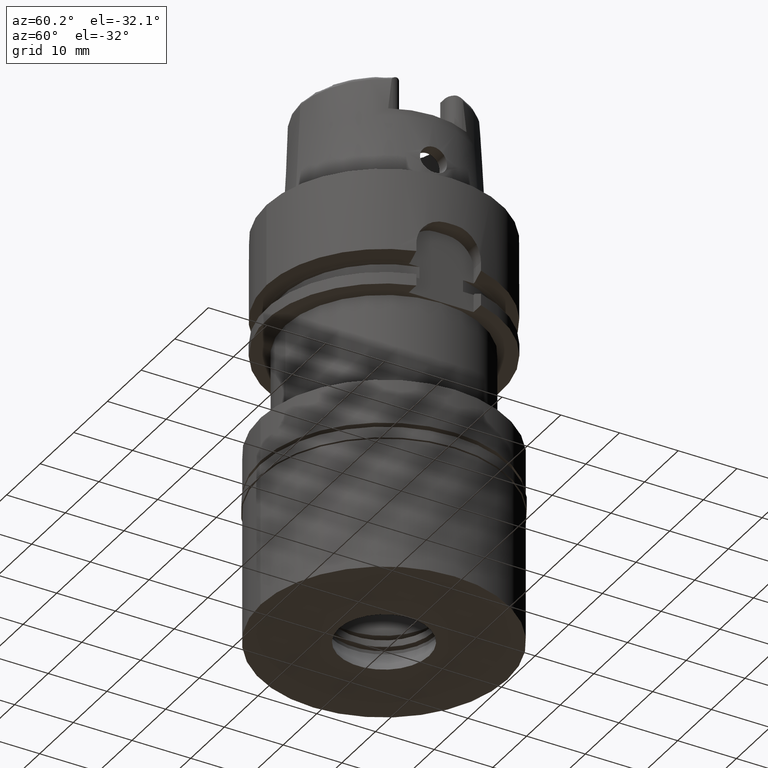
[diagram: clean part render]
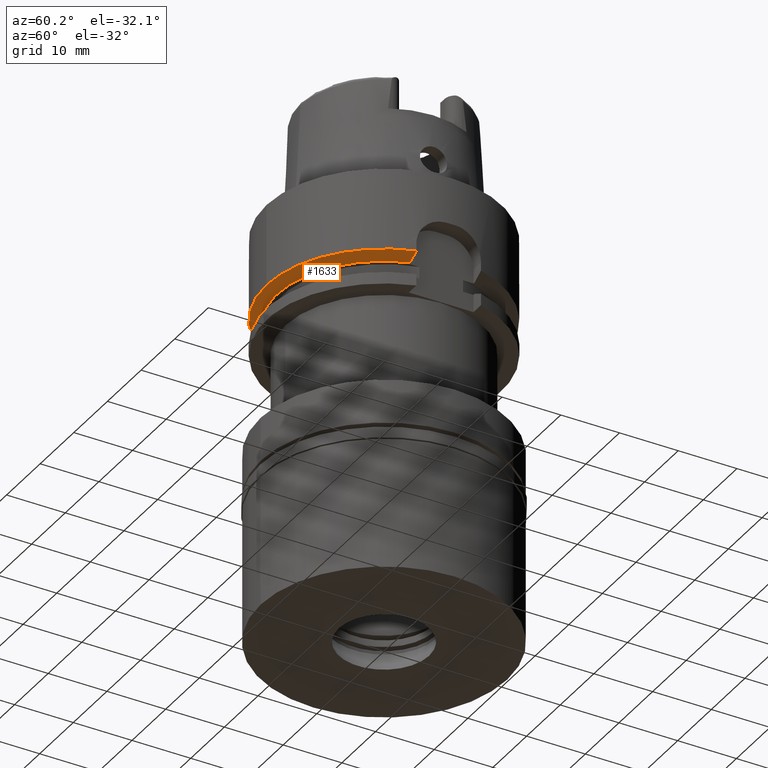
[diagram: same view with one face highlighted and labeled with its STEP entity id]
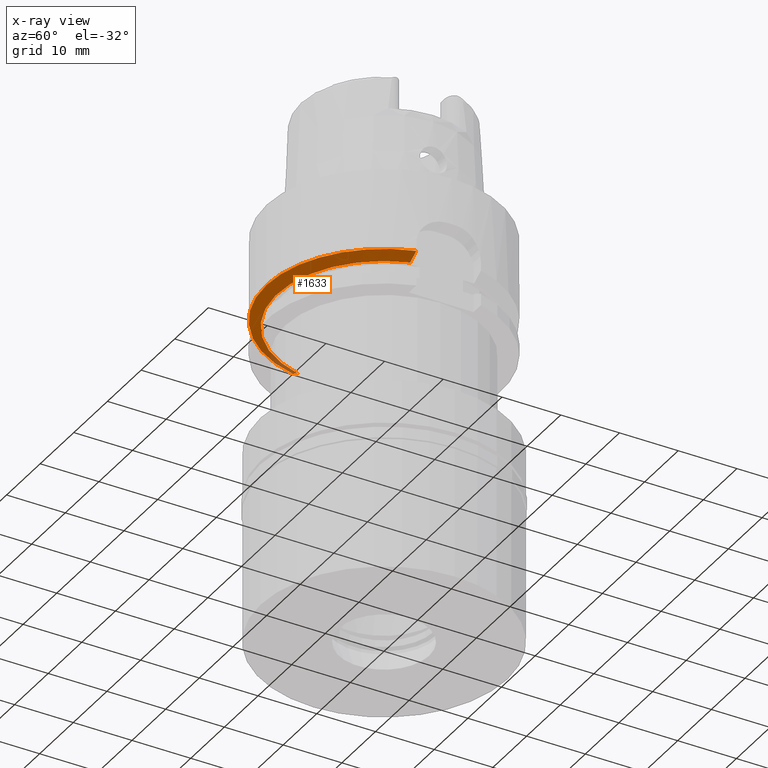
[diagram: x-ray of the same camera — body ghosted, the highlighted face saturated]
A machine part, auxiliary view. The second image highlights one B-rep face of the part: STEP entity #1633.
The next image is the same camera in x-ray: the body ghosted, the highlighted face saturated — about 5% of this face is hidden behind the body in this view.
In plain terms, the highlighted conical surface has half-angle 60 deg.
Its self-contained STEP definition (entity closure, byte-faithful):
#39 = CARTESIAN_POINT ( 'NONE',  ( -18.88128293145999947, -4.500000000000000000, -14.31992751062000124 ) ) ;
#146 = DIRECTION ( 'NONE',  ( 0.0000000000000000000, -1.000000000000000000, 0.0000000000000000000 ) ) ;
#159 = CARTESIAN_POINT ( 'NONE',  ( 18.58583610197553426, -5.500000964666775793, -14.33622370338597207 ) ) ;
#174 = DIRECTION ( 'NONE',  ( 0.0000000000000000000, 0.0000000000000000000, 1.000000000000000000 ) ) ;
#315 = EDGE_CURVE ( 'NONE', #2355, #4616, #1363, .T. ) ;
#392 = AXIS2_PLACEMENT_3D ( 'NONE', #3096, #4387, #4766 ) ;
#434 = CARTESIAN_POINT ( 'NONE',  ( 17.38268324078999783, -5.500000000000000000, -15.00000000000000000 ) ) ;
#1033 = CIRCLE ( 'NONE', #5418, 20.00000000000000000 ) ;
#1121 = ORIENTED_EDGE ( 'NONE', *, *, #1490, .T. ) ;
#1227 = CARTESIAN_POINT ( 'NONE',  ( -17.66798451012000370, -4.500000000000000000, -15.00000000000000000 ) ) ;
#1363 = CIRCLE ( 'NONE', #4444, 20.00000000000000355 ) ;
#1409 = FACE_OUTER_BOUND ( 'NONE', #2273, .T. ) ;
#1447 = CARTESIAN_POINT ( 'NONE',  ( 0.0000000000000000000, -20.00000000000000000, -13.97927405783999966 ) ) ;
#1490 = EDGE_CURVE ( 'NONE', #5059, #3422, #3731, .T. ) ;
#1633 = ADVANCED_FACE ( 'NONE', ( #1409 ), #4030, .T. ) ;
#1771 = CARTESIAN_POINT ( 'NONE',  ( -19.28525784598000214, -4.499999999998999911, -14.09286195644000017 ) ) ;
#1899 = CARTESIAN_POINT ( 'NONE',  ( 0.0000000000000000000, 1.047199923064999921E-14, -13.97927405783999966 ) ) ;
#2155 = CARTESIAN_POINT ( 'NONE',  ( -18.27489697170000227, -4.500000000000000000, -14.66019060122999917 ) ) ;
#2273 = EDGE_LOOP ( 'NONE', ( #4980, #3174, #1121, #4919, #3232 ) ) ;
#2355 = VERTEX_POINT ( 'NONE', #4289 ) ;
#2560 = CARTESIAN_POINT ( 'NONE',  ( -19.48717526991000071, -4.499999999998999911, -13.97927405783999966 ) ) ;
#2981 = CARTESIAN_POINT ( 'NONE',  ( 0.0000000000000000000, 1.047199923064999921E-14, -15.00000000000000000 ) ) ;
#2983 = AXIS2_PLACEMENT_3D ( 'NONE', #2981, #3364, #4258 ) ;
#3096 = CARTESIAN_POINT ( 'NONE',  ( 0.0000000000000000000, 1.047199923064999921E-14, -14.48963702891999894 ) ) ;
#3144 = CARTESIAN_POINT ( 'NONE',  ( 19.22888452303000051, -5.499999999998999911, -13.97927405783999966 ) ) ;
#3174 = ORIENTED_EDGE ( 'NONE', *, *, #5139, .T. ) ;
#3232 = ORIENTED_EDGE ( 'NONE', *, *, #315, .F. ) ;
#3322 = CIRCLE ( 'NONE', #2983, 18.23205080757000118 ) ;
#3358 = CARTESIAN_POINT ( 'NONE',  ( -17.87034388036000010, -4.500000000000000000, -14.88678233879000068 ) ) ;
#3364 = DIRECTION ( 'NONE',  ( 0.0000000000000000000, 0.0000000000000000000, 1.000000000000000000 ) ) ;
#3422 = VERTEX_POINT ( 'NONE', #3507 ) ;
#3507 = CARTESIAN_POINT ( 'NONE',  ( 19.22888452303000051, -5.499999999998999911, -13.97927405783999966 ) ) ;
#3573 = DIRECTION ( 'NONE',  ( 0.0000000000000000000, 0.0000000000000000000, 1.000000000000000000 ) ) ;
#3611 = CARTESIAN_POINT ( 'NONE',  ( 17.97044156134329995, -5.500000298020759182, -14.67646630620866333 ) ) ;
#3731 = B_SPLINE_CURVE_WITH_KNOTS ( 'NONE', 3,
 ( #4870, #3611, #159, #3144 ),
 .UNSPECIFIED., .F., .F.,
 ( 4, 4 ),
 ( 0.0000000000000000000, 1.000000000000000000 ),
 .UNSPECIFIED. ) ;
#4030 = CONICAL_SURFACE ( 'NONE', #392, 19.11602540378000015, 1.047197551196400456 ) ;
#4258 = DIRECTION ( 'NONE',  ( 0.0000000000000000000, -1.000000000000000000, 0.0000000000000000000 ) ) ;
#4289 = CARTESIAN_POINT ( 'NONE',  ( -19.48717526991000071, -4.499999999998999911, -13.97927405783999966 ) ) ;
#4347 = CARTESIAN_POINT ( 'NONE',  ( 0.0000000000000000000, 1.047199923064999921E-14, -13.97927405783999966 ) ) ;
#4387 = DIRECTION ( 'NONE',  ( 0.0000000000000000000, 0.0000000000000000000, 1.000000000000000000 ) ) ;
#4444 = AXIS2_PLACEMENT_3D ( 'NONE', #4347, #174, #5127 ) ;
#4553 = B_SPLINE_CURVE_WITH_KNOTS ( 'NONE', 3,
 ( #1227, #3358, #2155, #39, #1771, #2560 ),
 .UNSPECIFIED., .F., .F.,
 ( 4, 1, 1, 4 ),
 ( 0.0000000000000000000, 0.3333333333333000081, 0.6666666666667000474, 1.000000000000000000 ),
 .UNSPECIFIED. ) ;
#4616 = VERTEX_POINT ( 'NONE', #1447 ) ;
#4743 = EDGE_CURVE ( 'NONE', #4616, #3422, #1033, .T. ) ;
#4766 = DIRECTION ( 'NONE',  ( 0.0000000000000000000, 1.000000000000000000, 0.0000000000000000000 ) ) ;
#4870 = CARTESIAN_POINT ( 'NONE',  ( 17.38268324078999783, -5.500000000000000000, -15.00000000000000000 ) ) ;
#4919 = ORIENTED_EDGE ( 'NONE', *, *, #4743, .F. ) ;
#4980 = ORIENTED_EDGE ( 'NONE', *, *, #5347, .F. ) ;
#5059 = VERTEX_POINT ( 'NONE', #434 ) ;
#5120 = CARTESIAN_POINT ( 'NONE',  ( -17.66798451012000370, -4.500000000000000000, -15.00000000000000000 ) ) ;
#5127 = DIRECTION ( 'NONE',  ( -0.9743587634952779464, -0.2249999999998949785, 0.0000000000000000000 ) ) ;
#5139 = EDGE_CURVE ( 'NONE', #5185, #5059, #3322, .T. ) ;
#5185 = VERTEX_POINT ( 'NONE', #5120 ) ;
#5347 = EDGE_CURVE ( 'NONE', #5185, #2355, #4553, .T. ) ;
#5418 = AXIS2_PLACEMENT_3D ( 'NONE', #1899, #3573, #146 ) ;